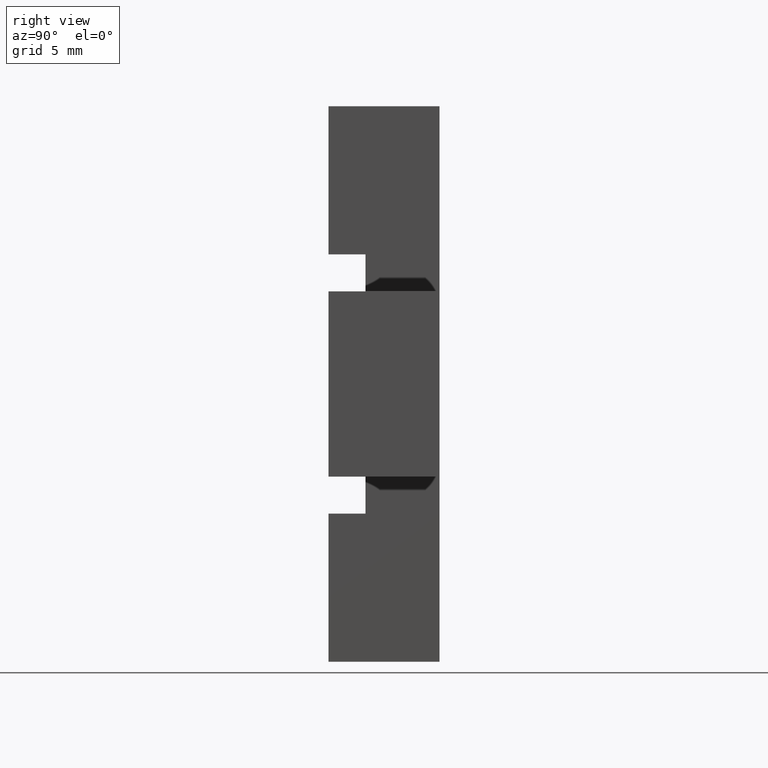
[diagram: clean part render]
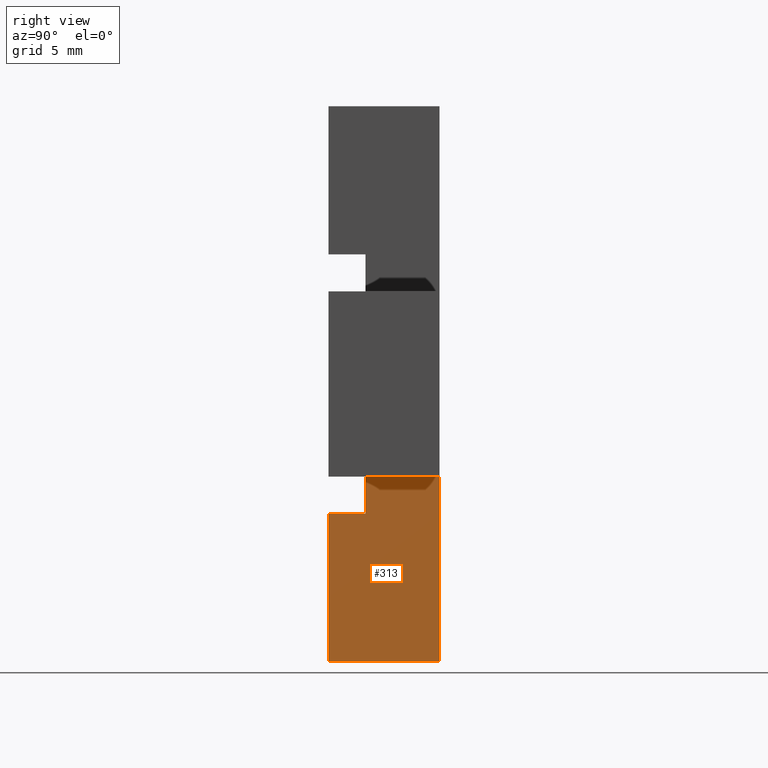
[diagram: same view with one face highlighted and labeled with its STEP entity id]
A machine part, right view. The second image highlights one B-rep face of the part: STEP entity #313.
In plain terms, the highlighted planar face has unit normal (1, 0, -0).
Its self-contained STEP definition (entity closure, byte-faithful):
#27=FACE_OUTER_BOUND('',#43,.T.);
#43=EDGE_LOOP('',(#261,#262,#263,#264,#265,#266));
#47=LINE('',#433,#89);
#51=LINE('',#441,#93);
#84=LINE('',#506,#126);
#85=LINE('',#508,#127);
#86=LINE('',#510,#128);
#87=LINE('',#511,#129);
#89=VECTOR('',#357,10.);
#93=VECTOR('',#363,10.);
#126=VECTOR('',#416,10.);
#127=VECTOR('',#419,10.);
#128=VECTOR('',#420,10.);
#129=VECTOR('',#421,10.);
#131=VERTEX_POINT('',#431);
#132=VERTEX_POINT('',#432);
#135=VERTEX_POINT('',#440);
#156=VERTEX_POINT('',#502);
#157=VERTEX_POINT('',#504);
#158=VERTEX_POINT('',#509);
#159=EDGE_CURVE('',#131,#132,#47,.T.);
#163=EDGE_CURVE('',#135,#131,#51,.T.);
#196=EDGE_CURVE('',#156,#157,#84,.T.);
#197=EDGE_CURVE('',#132,#156,#85,.T.);
#198=EDGE_CURVE('',#158,#157,#86,.T.);
#199=EDGE_CURVE('',#135,#158,#87,.T.);
#261=ORIENTED_EDGE('',*,*,#159,.T.);
#262=ORIENTED_EDGE('',*,*,#197,.T.);
#263=ORIENTED_EDGE('',*,*,#196,.T.);
#264=ORIENTED_EDGE('',*,*,#198,.F.);
#265=ORIENTED_EDGE('',*,*,#199,.F.);
#266=ORIENTED_EDGE('',*,*,#163,.T.);
#297=PLANE('',#349);
#313=ADVANCED_FACE('',(#27),#297,.T.);
#349=AXIS2_PLACEMENT_3D('',#507,#417,#418);
#357=DIRECTION('',(0.,-1.,0.));
#363=DIRECTION('',(-2.22044604925032E-16,1.38777878078144E-16,-1.));
#416=DIRECTION('',(0.,1.,0.));
#417=DIRECTION('center_axis',(1.,0.,-2.22044604925032E-16));
#418=DIRECTION('ref_axis',(-2.22044604925032E-16,0.,-1.));
#419=DIRECTION('',(-2.22044604925032E-16,0.,-1.));
#420=DIRECTION('',(-2.22044604925032E-16,0.,-1.));
#421=DIRECTION('',(0.,1.,0.));
#431=CARTESIAN_POINT('',(-6.50000000000001,2.,-7.));
#432=CARTESIAN_POINT('',(-6.50000000000001,2.44929359829471E-16,-7.));
#433=CARTESIAN_POINT('',(-6.49999999999999,1.,-7.));
#440=CARTESIAN_POINT('',(-6.50000000000001,2.,-5.));
#441=CARTESIAN_POINT('',(-6.49999999999999,2.,-5.));
#502=CARTESIAN_POINT('',(-6.49999999999999,0.,-15.));
#504=CARTESIAN_POINT('',(-6.49999999999999,6.,-15.));
#506=CARTESIAN_POINT('',(-6.49999999999999,0.,-15.));
#507=CARTESIAN_POINT('Origin',(-6.49999999999999,0.,-5.));
#508=CARTESIAN_POINT('',(-6.49999999999999,0.,-5.));
#509=CARTESIAN_POINT('',(-6.49999999999999,6.,-5.));
#510=CARTESIAN_POINT('',(-6.49999999999999,6.,-5.));
#511=CARTESIAN_POINT('',(-6.49999999999999,0.,-5.));